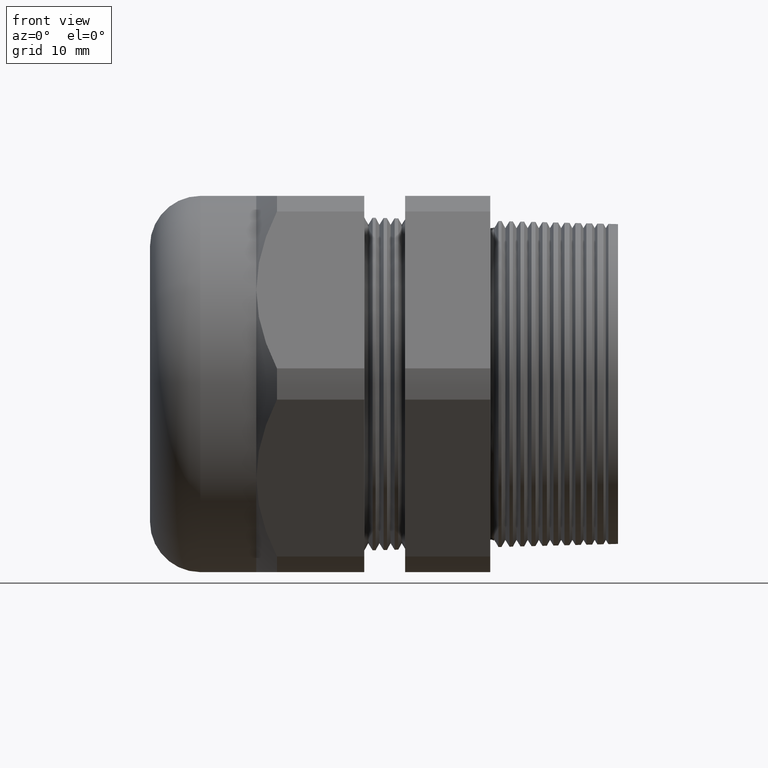
[diagram: clean part render]
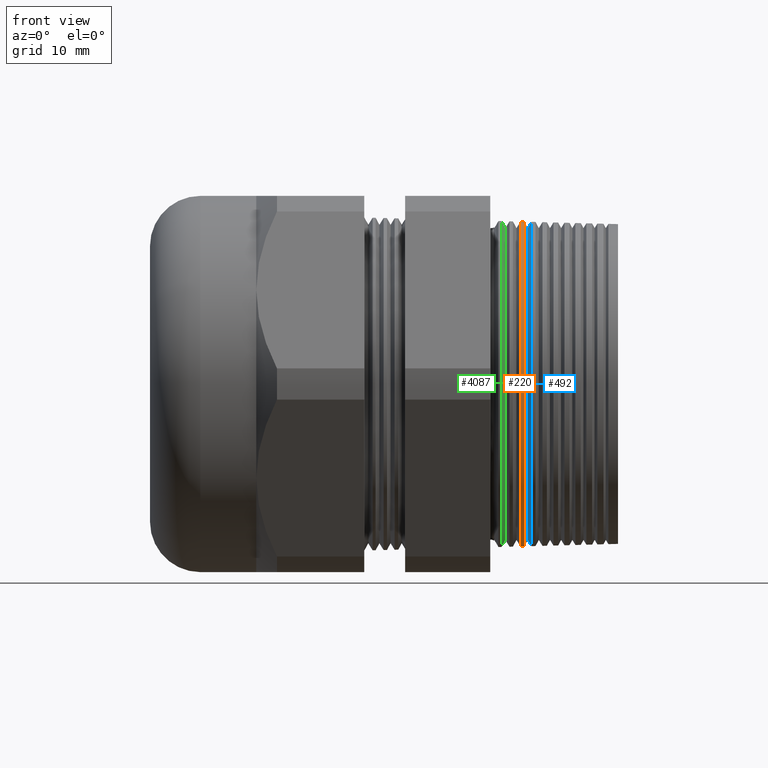
[diagram: same view with three faces highlighted in distinct colors, each labeled with its STEP entity id]
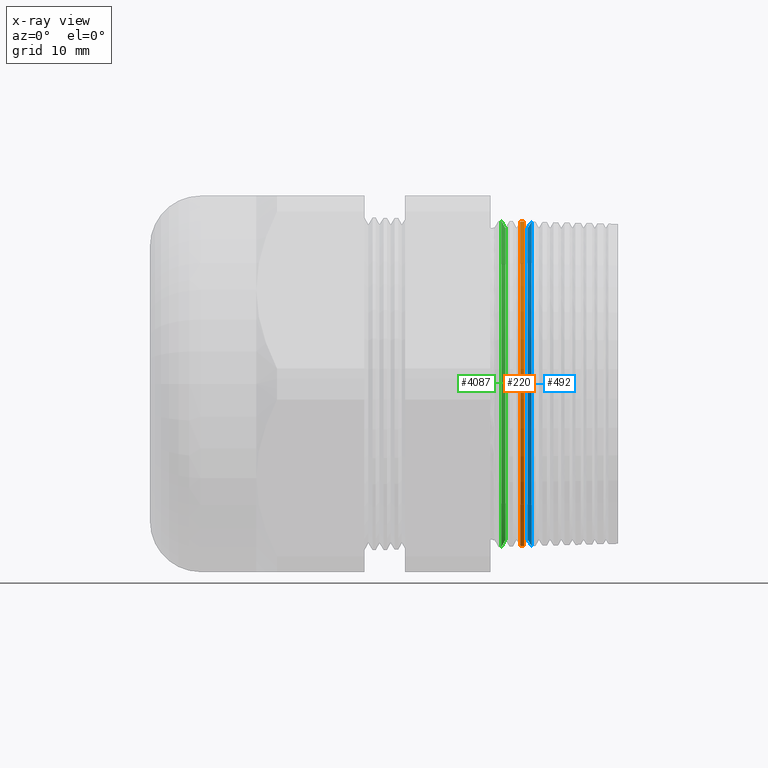
[diagram: x-ray of the same camera — body ghosted, the three highlighted faces saturated]
A machine part, front view with three faces highlighted in distinct colors.
The next image is the same camera in x-ray (body ghosted, the three faces saturated) — at least one of them is partly hidden behind the body in this view.
Their STEP definitions:

[orange] entity #220 — the highlighted conical surface has half-angle 1.5 deg.
#220 = ADVANCED_FACE ( 'NONE', ( #1658 ), #1656, .T. ) ;
#222 = ORIENTED_EDGE ( 'NONE', *, *, #225, .F. ) ;
#224 = EDGE_CURVE ( 'NONE', #326, #4012, #1657, .T. ) ;
#225 = EDGE_CURVE ( 'NONE', #309, #3286, #1648, .T. ) ;
#226 = EDGE_LOOP ( 'NONE', ( #222, #648, #657, #660 ) ) ;
#309 = VERTEX_POINT ( 'NONE', #1853 ) ;
#326 = VERTEX_POINT ( 'NONE', #1826 ) ;
#648 = ORIENTED_EDGE ( 'NONE', *, *, #675, .F. ) ;
#657 = ORIENTED_EDGE ( 'NONE', *, *, #224, .T. ) ;
#660 = ORIENTED_EDGE ( 'NONE', *, *, #661, .F. ) ;
#661 = EDGE_CURVE ( 'NONE', #3286, #4012, #2396, .T. ) ;
#675 = EDGE_CURVE ( 'NONE', #326, #309, #2430, .T. ) ;
#1645 = DIRECTION ( 'NONE',  ( -0.9996573249755573700, 3.205751595667375400E-018, -0.02617694830786594700 ) ) ;
#1646 = VECTOR ( 'NONE', #1645, 39.37007874015748100 ) ;
#1647 = CARTESIAN_POINT ( 'NONE',  ( 0.3999999999999999700, 1.087599334793357900E-016, -0.8880922528443195900 ) ) ;
#1648 = LINE ( 'NONE', #1647, #1646 ) ;
#1649 = DIRECTION ( 'NONE',  ( -0.9996573249755573700, 0.0000000000000000000, 0.02617694830786594700 ) ) ;
#1650 = VECTOR ( 'NONE', #1649, 39.37007874015748100 ) ;
#1651 = CARTESIAN_POINT ( 'NONE',  ( 0.3999999999999999700, 0.0000000000000000000, 0.8880922528443195900 ) ) ;
#1652 = DIRECTION ( 'NONE',  ( 0.0000000000000000000, 0.0000000000000000000, 1.000000000000000000 ) ) ;
#1653 = DIRECTION ( 'NONE',  ( -1.000000000000000000, 0.0000000000000000000, 0.0000000000000000000 ) ) ;
#1654 = CARTESIAN_POINT ( 'NONE',  ( 0.3999999999999999700, 0.0000000000000000000, 0.0000000000000000000 ) ) ;
#1655 = AXIS2_PLACEMENT_3D ( 'NONE', #1654, #1653, #1652 ) ;
#1656 = CONICAL_SURFACE ( 'NONE', #1655, 0.8880922528443195900, 0.02617993877990773500 ) ;
#1657 = LINE ( 'NONE', #1651, #1650 ) ;
#1658 = FACE_OUTER_BOUND ( 'NONE', #226, .T. ) ;
#1826 = CARTESIAN_POINT ( 'NONE',  ( -0.1213173486742856300, 0.0000000000000000000, 0.9017434280493572500 ) ) ;
#1853 = CARTESIAN_POINT ( 'NONE',  ( -0.1213173486742856300, 1.104645405188582700E-016, -0.9017434280493572500 ) ) ;
#2392 = DIRECTION ( 'NONE',  ( 0.0000000000000000000, 0.0000000000000000000, -1.000000000000000000 ) ) ;
#2393 = DIRECTION ( 'NONE',  ( -1.000000000000000000, 0.0000000000000000000, 0.0000000000000000000 ) ) ;
#2394 = CARTESIAN_POINT ( 'NONE',  ( -0.1417861778538133100, 0.0000000000000000000, 0.0000000000000000000 ) ) ;
#2395 = AXIS2_PLACEMENT_3D ( 'NONE', #2394, #2393, #2392 ) ;
#2396 = CIRCLE ( 'NONE', #2395, 0.9022794232048650900 ) ;
#2430 = CIRCLE ( 'NONE', #2481, 0.9017434280493572500 ) ;
#2478 = DIRECTION ( 'NONE',  ( 0.0000000000000000000, 0.0000000000000000000, 1.000000000000000000 ) ) ;
#2479 = DIRECTION ( 'NONE',  ( 1.000000000000000000, 0.0000000000000000000, 0.0000000000000000000 ) ) ;
#2480 = CARTESIAN_POINT ( 'NONE',  ( -0.1213173486742856300, 0.0000000000000000000, 0.0000000000000000000 ) ) ;
#2481 = AXIS2_PLACEMENT_3D ( 'NONE', #2480, #2479, #2478 ) ;
#3286 = VERTEX_POINT ( 'NONE', #3455 ) ;
#3455 = CARTESIAN_POINT ( 'NONE',  ( -0.1417861778538133100, 1.104973607564358300E-016, -0.9022794232048652100 ) ) ;
#3533 = CARTESIAN_POINT ( 'NONE',  ( -0.1417861778538133100, 0.0000000000000000000, 0.9022794232048652100 ) ) ;
#4012 = VERTEX_POINT ( 'NONE', #3533 ) ;

[blue] entity #492 — the highlighted conical surface has half-angle 58.5 deg.
#242 = EDGE_CURVE ( 'NONE', #315, #325, #1679, .T. ) ;
#307 = EDGE_CURVE ( 'NONE', #311, #316, #1858, .T. ) ;
#311 = VERTEX_POINT ( 'NONE', #1852 ) ;
#315 = VERTEX_POINT ( 'NONE', #1845 ) ;
#316 = VERTEX_POINT ( 'NONE', #1844 ) ;
#325 = VERTEX_POINT ( 'NONE', #1827 ) ;
#328 = EDGE_CURVE ( 'NONE', #311, #325, #1888, .T. ) ;
#485 = ORIENTED_EDGE ( 'NONE', *, *, #328, .F. ) ;
#487 = ORIENTED_EDGE ( 'NONE', *, *, #242, .T. ) ;
#488 = ORIENTED_EDGE ( 'NONE', *, *, #4022, .T. ) ;
#489 = ORIENTED_EDGE ( 'NONE', *, *, #307, .T. ) ;
#490 = EDGE_LOOP ( 'NONE', ( #485, #489, #488, #487 ) ) ;
#492 = ADVANCED_FACE ( 'NONE', ( #2130 ), #2125, .T. ) ;
#1676 = DIRECTION ( 'NONE',  ( 0.0000000000000000000, 0.0000000000000000000, -1.000000000000000000 ) ) ;
#1677 = DIRECTION ( 'NONE',  ( -1.000000000000000000, 0.0000000000000000000, 0.0000000000000000000 ) ) ;
#1678 = AXIS2_PLACEMENT_3D ( 'NONE', #1685, #1677, #1676 ) ;
#1679 = CIRCLE ( 'NONE', #1678, 0.9006815369541636400 ) ;
#1685 = CARTESIAN_POINT ( 'NONE',  ( -0.08076536380760360200, 0.0000000000000000000, 0.0000000000000000000 ) ) ;
#1827 = CARTESIAN_POINT ( 'NONE',  ( -0.08076536380760360200, 0.0000000000000000000, 0.9006815369541636400 ) ) ;
#1844 = CARTESIAN_POINT ( 'NONE',  ( -0.1019609809054344400, 1.082487876914738200E-016, -0.8660934334333305600 ) ) ;
#1845 = CARTESIAN_POINT ( 'NONE',  ( -0.08076536380760360200, 1.103016761282035200E-016, -0.9006815369541636400 ) ) ;
#1852 = CARTESIAN_POINT ( 'NONE',  ( -0.1019609809054344400, 0.0000000000000000000, 0.8660934334333305600 ) ) ;
#1854 = DIRECTION ( 'NONE',  ( 0.0000000000000000000, 0.0000000000000000000, -1.000000000000000000 ) ) ;
#1855 = DIRECTION ( 'NONE',  ( 1.000000000000000000, 0.0000000000000000000, 0.0000000000000000000 ) ) ;
#1856 = CARTESIAN_POINT ( 'NONE',  ( -0.1019609809054344400, 0.0000000000000000000, 0.0000000000000000000 ) ) ;
#1857 = AXIS2_PLACEMENT_3D ( 'NONE', #1856, #1855, #1854 ) ;
#1858 = CIRCLE ( 'NONE', #1857, 0.8660934334333305600 ) ;
#1885 = DIRECTION ( 'NONE',  ( 0.5224985647159459100, 1.044183048100714500E-016, 0.8526401643540939500 ) ) ;
#1886 = VECTOR ( 'NONE', #1885, 39.37007874015748100 ) ;
#1887 = CARTESIAN_POINT ( 'NONE',  ( -0.1019609809054344400, 1.060658551016669500E-016, 0.8660934334333305600 ) ) ;
#1888 = LINE ( 'NONE', #1887, #1886 ) ;
#2120 = DIRECTION ( 'NONE',  ( 0.0000000000000000000, 0.0000000000000000000, -1.000000000000000000 ) ) ;
#2121 = DIRECTION ( 'NONE',  ( 1.000000000000000000, 0.0000000000000000000, 0.0000000000000000000 ) ) ;
#2122 = CARTESIAN_POINT ( 'NONE',  ( -0.1019609809054344400, 0.0000000000000000000, 0.0000000000000000000 ) ) ;
#2123 = AXIS2_PLACEMENT_3D ( 'NONE', #2122, #2121, #2120 ) ;
#2125 = CONICAL_SURFACE ( 'NONE', #2123, 0.8660934334333305600, 1.021017612416686300 ) ;
#2130 = FACE_OUTER_BOUND ( 'NONE', #490, .T. ) ;
#3512 = DIRECTION ( 'NONE',  ( 0.5224985647159459100, 0.0000000000000000000, -0.8526401643540939500 ) ) ;
#3513 = VECTOR ( 'NONE', #3512, 39.37007874015748100 ) ;
#3514 = CARTESIAN_POINT ( 'NONE',  ( -0.1019609809054344400, 0.0000000000000000000, -0.8660934334333305600 ) ) ;
#3515 = LINE ( 'NONE', #3514, #3513 ) ;
#4022 = EDGE_CURVE ( 'NONE', #316, #315, #3515, .T. ) ;

[green] entity #4087 — the highlighted conical surface has half-angle 61.5 deg.
#203 = EDGE_CURVE ( 'NONE', #370, #713, #1626, .T. ) ;
#302 = VERTEX_POINT ( 'NONE', #1802 ) ;
#304 = VERTEX_POINT ( 'NONE', #1801 ) ;
#370 = VERTEX_POINT ( 'NONE', #1935 ) ;
#450 = ORIENTED_EDGE ( 'NONE', *, *, #203, .T. ) ;
#471 = ORIENTED_EDGE ( 'NONE', *, *, #706, .T. ) ;
#472 = DIRECTION ( 'NONE',  ( 1.000000000000000000, 0.0000000000000000000, 0.0000000000000000000 ) ) ;
#473 = DIRECTION ( 'NONE',  ( 0.0000000000000000000, 0.0000000000000000000, -1.000000000000000000 ) ) ;
#474 = ORIENTED_EDGE ( 'NONE', *, *, #475, .F. ) ;
#475 = EDGE_CURVE ( 'NONE', #302, #304, #1311, .T. ) ;
#706 = EDGE_CURVE ( 'NONE', #302, #370, #2533, .T. ) ;
#713 = VERTEX_POINT ( 'NONE', #2523 ) ;
#1311 = CIRCLE ( 'NONE', #1579, 0.8660934334333305600 ) ;
#1579 = AXIS2_PLACEMENT_3D ( 'NONE', #2087, #472, #473 ) ;
#1622 = DIRECTION ( 'NONE',  ( 0.0000000000000000000, 0.0000000000000000000, 1.000000000000000000 ) ) ;
#1623 = DIRECTION ( 'NONE',  ( 1.000000000000000000, 0.0000000000000000000, 0.0000000000000000000 ) ) ;
#1624 = CARTESIAN_POINT ( 'NONE',  ( -0.2471057828914286200, 0.0000000000000000000, 0.0000000000000000000 ) ) ;
#1625 = AXIS2_PLACEMENT_3D ( 'NONE', #1624, #1623, #1622 ) ;
#1626 = CIRCLE ( 'NONE', #1625, 0.9050373141220772200 ) ;
#1801 = CARTESIAN_POINT ( 'NONE',  ( -0.2259609809054344600, 1.084504800432594600E-016, -0.8660934334333305600 ) ) ;
#1802 = CARTESIAN_POINT ( 'NONE',  ( -0.2259609809054344600, 0.0000000000000000000, 0.8660934334333305600 ) ) ;
#1935 = CARTESIAN_POINT ( 'NONE',  ( -0.2471057828914286200, 0.0000000000000000000, 0.9050373141220772200 ) ) ;
#2087 = CARTESIAN_POINT ( 'NONE',  ( -0.2259609809054344600, 0.0000000000000000000, 0.0000000000000000000 ) ) ;
#2523 = CARTESIAN_POINT ( 'NONE',  ( -0.2471057828914286200, 1.108619174988762200E-016, -0.9050373141220772200 ) ) ;
#2530 = DIRECTION ( 'NONE',  ( -0.4771587602596058500, 0.0000000000000000000, 0.8788171126619667200 ) ) ;
#2531 = VECTOR ( 'NONE', #2530, 39.37007874015748100 ) ;
#2532 = CARTESIAN_POINT ( 'NONE',  ( -0.2480000000000000000, 0.0000000000000000000, 0.9066842571584370300 ) ) ;
#2533 = LINE ( 'NONE', #2532, #2531 ) ;
#3632 = DIRECTION ( 'NONE',  ( -0.4771587602596058500, 1.076240564057396400E-016, -0.8788171126619667200 ) ) ;
#3633 = VECTOR ( 'NONE', #3632, 39.37007874015748100 ) ;
#3634 = CARTESIAN_POINT ( 'NONE',  ( -0.2480000000000000000, 1.110367973366375700E-016, -0.9066842571584370300 ) ) ;
#3635 = LINE ( 'NONE', #3634, #3633 ) ;
#3684 = DIRECTION ( 'NONE',  ( 0.0000000000000000000, 0.0000000000000000000, 1.000000000000000000 ) ) ;
#3685 = DIRECTION ( 'NONE',  ( -1.000000000000000000, 0.0000000000000000000, 0.0000000000000000000 ) ) ;
#3686 = CARTESIAN_POINT ( 'NONE',  ( -0.2480000000000000000, 0.0000000000000000000, 0.0000000000000000000 ) ) ;
#3687 = AXIS2_PLACEMENT_3D ( 'NONE', #3686, #3685, #3684 ) ;
#3688 = CONICAL_SURFACE ( 'NONE', #3687, 0.9066842571584370300, 1.073377489976515600 ) ;
#3692 = FACE_OUTER_BOUND ( 'NONE', #4086, .T. ) ;
#4054 = EDGE_CURVE ( 'NONE', #304, #713, #3635, .T. ) ;
#4085 = ORIENTED_EDGE ( 'NONE', *, *, #4054, .F. ) ;
#4086 = EDGE_LOOP ( 'NONE', ( #4085, #474, #471, #450 ) ) ;
#4087 = ADVANCED_FACE ( 'NONE', ( #3692 ), #3688, .T. ) ;